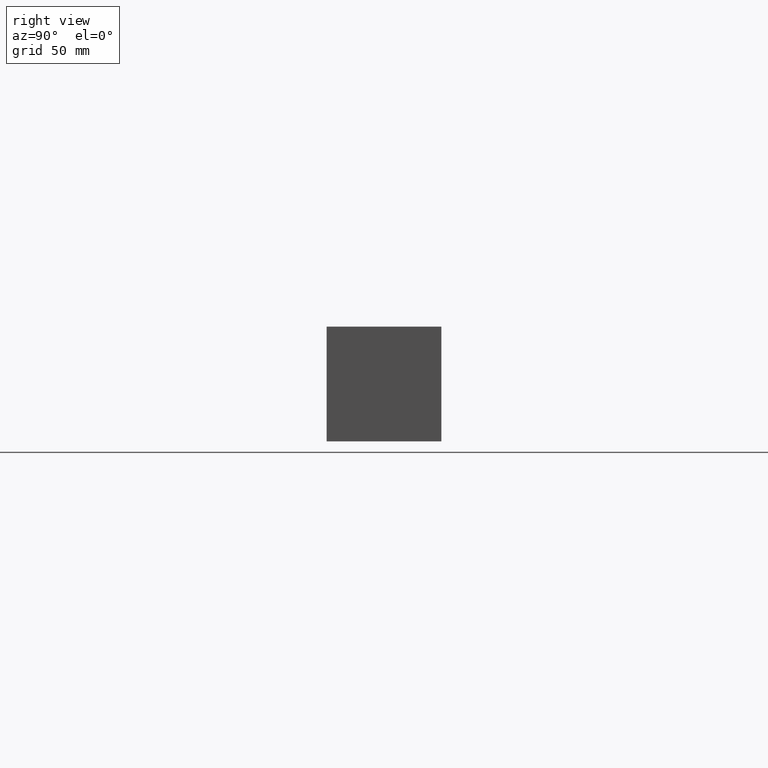
[diagram: clean part render]
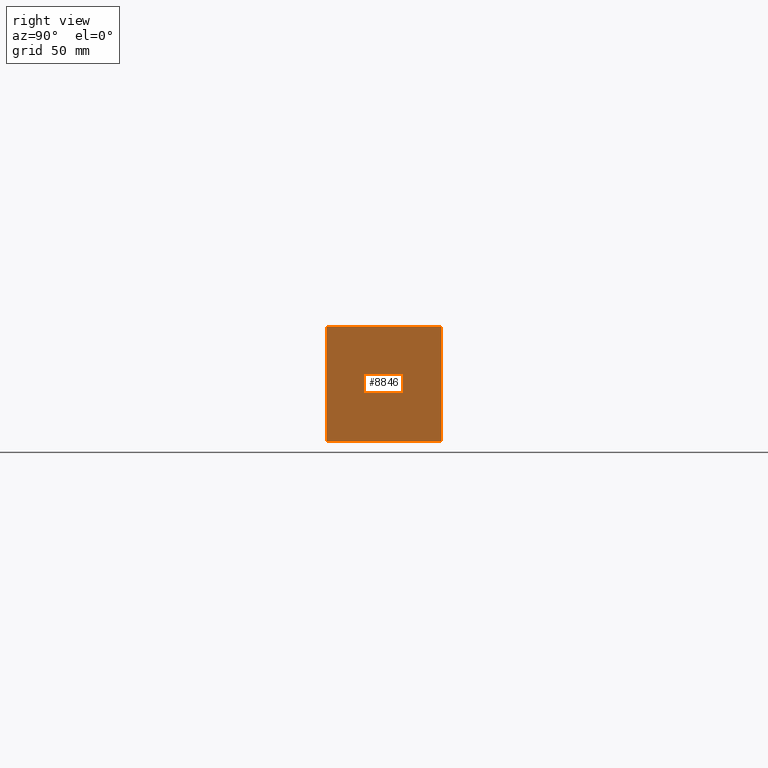
[diagram: same view with one face highlighted and labeled with its STEP entity id]
A machine part, right view. The second image highlights one B-rep face of the part: STEP entity #8846.
In plain terms, the highlighted planar face has unit normal (1, 0, 0).
Its self-contained STEP definition (entity closure, byte-faithful):
#1264=FACE_OUTER_BOUND('',#1791,.T.);
#1791=EDGE_LOOP('',(#7818,#7819,#7820,#7821));
#2056=LINE('',#13749,#2811);
#2558=LINE('',#15430,#3313);
#2559=LINE('',#15433,#3314);
#2560=LINE('',#15434,#3315);
#2811=VECTOR('',#9830,10.);
#3313=VECTOR('',#11406,10.);
#3314=VECTOR('',#11409,10.);
#3315=VECTOR('',#11410,10.);
#3626=VERTEX_POINT('',#13746);
#3627=VERTEX_POINT('',#13748);
#4141=VERTEX_POINT('',#15428);
#4142=VERTEX_POINT('',#15432);
#4606=EDGE_CURVE('',#3626,#3627,#2056,.T.);
#5376=EDGE_CURVE('',#4141,#3627,#2558,.T.);
#5377=EDGE_CURVE('',#4142,#4141,#2559,.T.);
#5378=EDGE_CURVE('',#4142,#3626,#2560,.T.);
#7818=ORIENTED_EDGE('',*,*,#5377,.T.);
#7819=ORIENTED_EDGE('',*,*,#5376,.T.);
#7820=ORIENTED_EDGE('',*,*,#4606,.F.);
#7821=ORIENTED_EDGE('',*,*,#5378,.F.);
#8079=PLANE('',#9459);
#8846=ADVANCED_FACE('',(#1264),#8079,.T.);
#9459=AXIS2_PLACEMENT_3D('',#15431,#11407,#11408);
#9830=DIRECTION('',(0.,1.,0.));
#11406=DIRECTION('',(0.,0.,1.));
#11407=DIRECTION('center_axis',(1.,0.,0.));
#11408=DIRECTION('ref_axis',(0.,1.,0.));
#11409=DIRECTION('',(0.,1.,0.));
#11410=DIRECTION('',(0.,0.,1.));
#13746=CARTESIAN_POINT('',(276.225,0.,44.45));
#13748=CARTESIAN_POINT('',(276.225,44.45,44.45));
#13749=CARTESIAN_POINT('',(276.225,0.,44.45));
#15428=CARTESIAN_POINT('',(276.225,44.45,0.));
#15430=CARTESIAN_POINT('',(276.225,44.45,0.));
#15431=CARTESIAN_POINT('Origin',(276.225,0.,0.));
#15432=CARTESIAN_POINT('',(276.225,0.,0.));
#15433=CARTESIAN_POINT('',(276.225,0.,0.));
#15434=CARTESIAN_POINT('',(276.225,0.,0.));